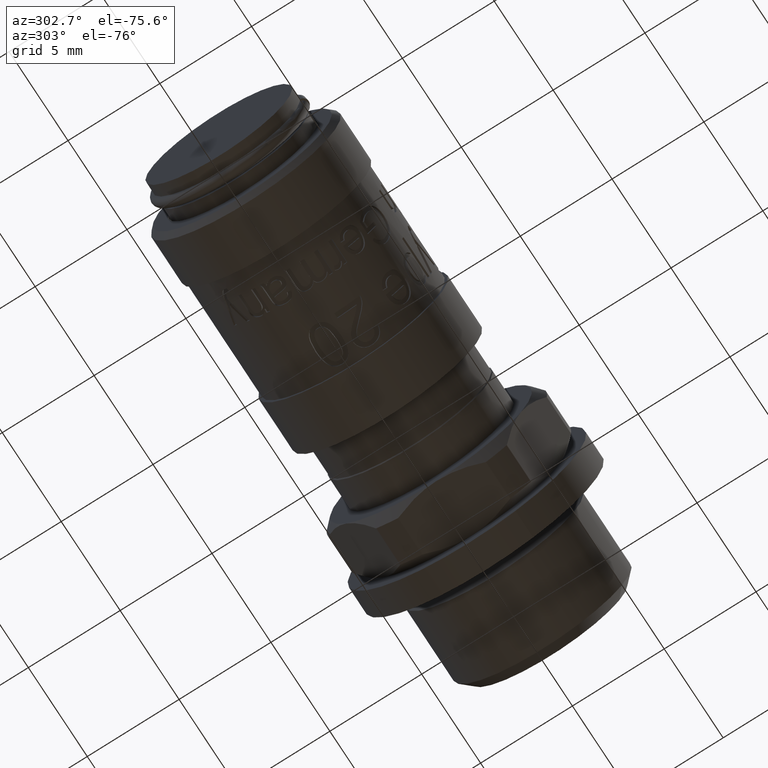
[diagram: clean part render]
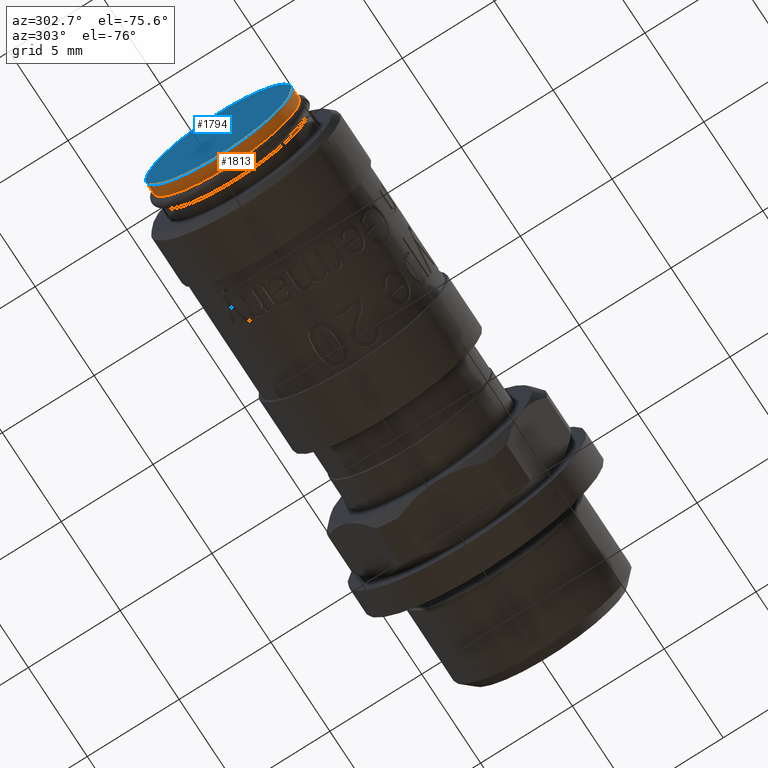
[diagram: same view with the hole feature highlighted: cylindrical wall and planar end face, labeled with their STEP entity ids]
A machine part, auxiliary view. The highlighted faces form one hole feature of diameter 8 mm: the cylindrical wall (entity #1813, orange) and its adjacent planar end face (entity #1794, blue) — they share a circular edge in the B-rep.
Wall:
#1417=CARTESIAN_POINT('',(0.650000000000239,-3.994996871087601,-0.200000000000708));
#1418=VERTEX_POINT('',#1417);
#1419=CARTESIAN_POINT('',(0.650000000000239,-3.994996871087672,0.199999999999293));
#1420=VERTEX_POINT('',#1419);
#1421=CARTESIAN_POINT('',(0.649999999999999,0.0,0.0));
#1422=DIRECTION('',(1.0,0.0,0.0));
#1423=DIRECTION('',(0.0,1.0,0.0));
#1424=AXIS2_PLACEMENT_3D('',#1421,#1422,#1423);
#1425=CIRCLE('',#1424,4.0);
#1426=EDGE_CURVE('',#1418,#1420,#1425,.T.);
#1783=CARTESIAN_POINT('',(-4.857226E-016,4.0,0.0));
#1784=VERTEX_POINT('',#1783);
#1785=CARTESIAN_POINT('',(0.0,0.0,0.0));
#1786=DIRECTION('',(1.0,0.0,0.0));
#1787=DIRECTION('',(0.0,1.0,0.0));
#1788=AXIS2_PLACEMENT_3D('',#1785,#1786,#1787);
#1789=CIRCLE('',#1788,4.0);
#1790=EDGE_CURVE('',#1784,#1784,#1789,.T.);
#1795=CARTESIAN_POINT('',(0.325,0.0,0.0));
#1796=DIRECTION('',(1.0,0.0,0.0));
#1797=DIRECTION('',(0.0,1.0,0.0));
#1798=AXIS2_PLACEMENT_3D('',#1795,#1796,#1797);
#1799=CYLINDRICAL_SURFACE('',#1798,4.0);
#1800=ORIENTED_EDGE('',*,*,#1426,.F.);
#1801=CARTESIAN_POINT('',(0.649999999999999,0.0,0.0));
#1802=DIRECTION('',(1.0,0.0,0.0));
#1803=DIRECTION('',(0.0,1.0,0.0));
#1804=AXIS2_PLACEMENT_3D('',#1801,#1802,#1803);
#1805=CIRCLE('',#1804,4.0);
#1806=EDGE_CURVE('',#1420,#1418,#1805,.T.);
#1807=ORIENTED_EDGE('',*,*,#1806,.F.);
#1808=EDGE_LOOP('',(#1800,#1807));
#1809=FACE_OUTER_BOUND('',#1808,.T.);
#1810=ORIENTED_EDGE('',*,*,#1790,.T.);
#1811=EDGE_LOOP('',(#1810));
#1812=FACE_BOUND('',#1811,.T.);
#1813=ADVANCED_FACE('',(#1809,#1812),#1799,.T.);
End face:
#1778=CARTESIAN_POINT('',(-2.428613E-016,3.525,0.0));
#1779=DIRECTION('',(-1.0,0.0,0.0));
#1780=DIRECTION('',(0.0,0.0,1.0));
#1781=AXIS2_PLACEMENT_3D('',#1778,#1779,#1780);
#1782=PLANE('',#1781);
#1783=CARTESIAN_POINT('',(-4.857226E-016,4.0,0.0));
#1784=VERTEX_POINT('',#1783);
#1785=CARTESIAN_POINT('',(0.0,0.0,0.0));
#1786=DIRECTION('',(1.0,0.0,0.0));
#1787=DIRECTION('',(0.0,1.0,0.0));
#1788=AXIS2_PLACEMENT_3D('',#1785,#1786,#1787);
#1789=CIRCLE('',#1788,4.0);
#1790=EDGE_CURVE('',#1784,#1784,#1789,.T.);
#1791=ORIENTED_EDGE('',*,*,#1790,.F.);
#1792=EDGE_LOOP('',(#1791));
#1793=FACE_OUTER_BOUND('',#1792,.T.);
#1794=ADVANCED_FACE('',(#1793),#1782,.T.);